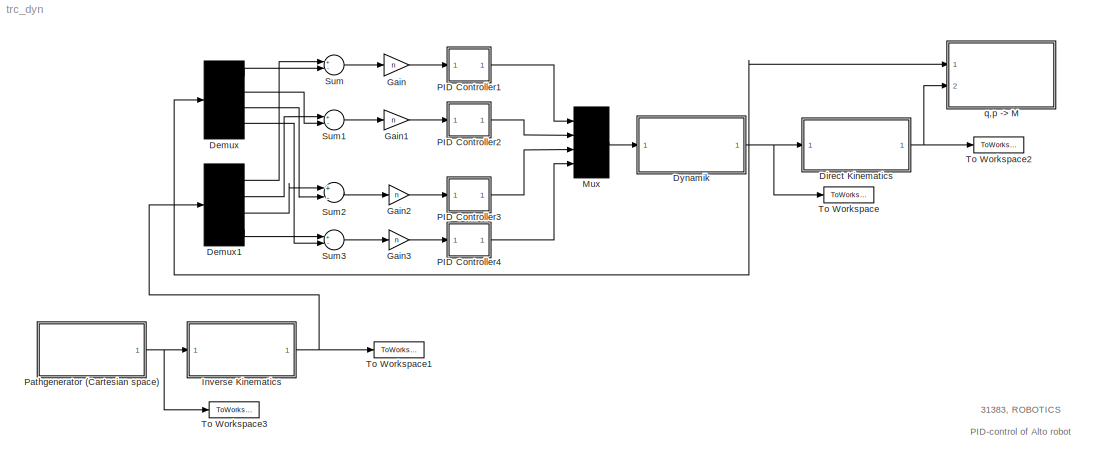
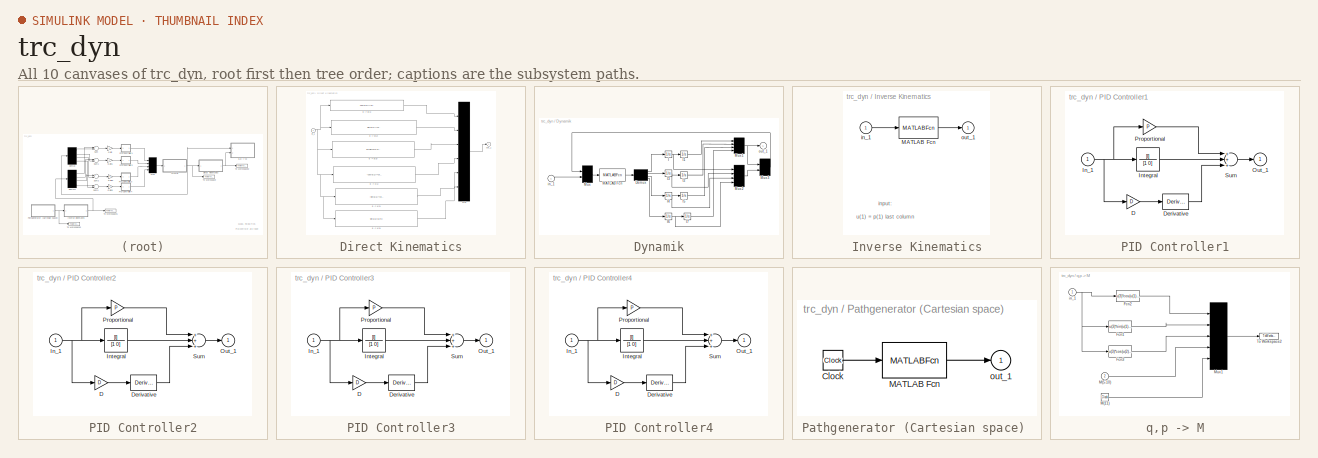
[diagram: thumbnail index - all 10 canvases of the model, root first then tree order]
MODEL trc_dyn
KIND model
BLOCK [Demux] Demux
  Ports = [1, 4]
  SID = 1
BLOCK [Demux] Demux1
  Ports = [1, 4]
  SID = 2
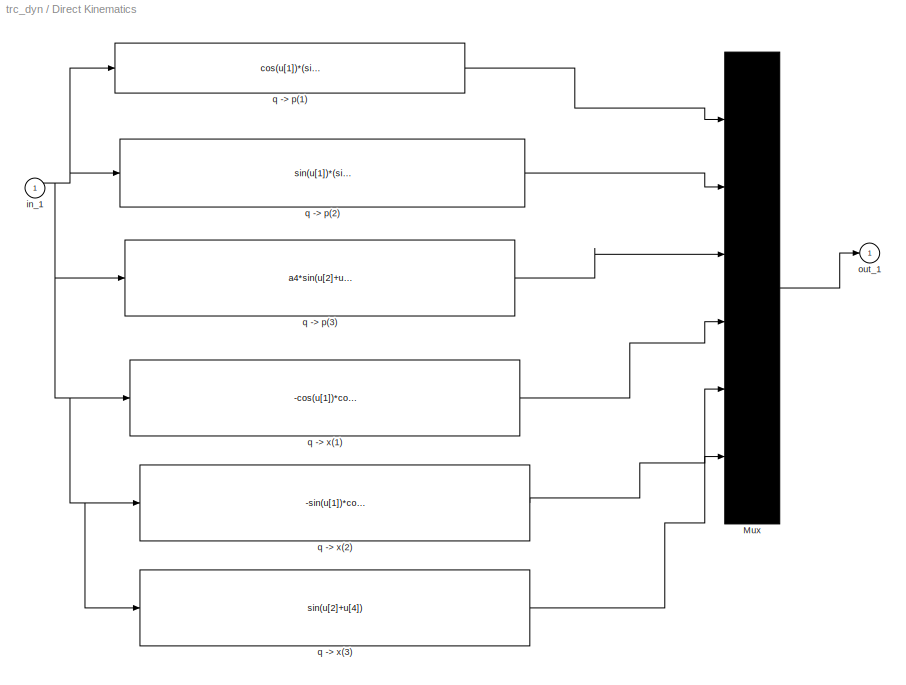
BLOCK [SubSystem] Direct Kinematics
  Ports = [1, 1]
  RequestExecContextInheritance = off
  SID = 116
  ShowPortLabels = none
  Variant = off
BLOCK [Mux] Direct Kinematics/Mux
  Inputs = 6
  Ports = [6, 1]
  SID = 118
BLOCK [Inport] Direct Kinematics/in_1
  IconDisplay = Port number
  SID = 117
BLOCK [Outport] Direct Kinematics/out_1
  IconDisplay = Port number
  InitialOutput = 0
  SID = 125
BLOCK [Fcn] Direct Kinematics/q -> p(1)
  Expr = cos(u[1])*(sin(u[2])*u[3]-a4*cos(u[2]+u[4]) )
  SID = 119
BLOCK [Fcn] Direct Kinematics/q -> p(2)
  Expr = sin(u[1])*(sin(u[2])*u[3]-a4*cos(u[2]+u[4]))
  SID = 120
BLOCK [Fcn] Direct Kinematics/q -> p(3)
  Expr = a4*sin(u[2]+u[4]) + cos(u[2])*u[3]+d1
  SID = 121
BLOCK [Fcn] Direct Kinematics/q -> x(1)
  Expr = -cos(u[1])*cos(u[2]+u[4])
  SID = 122
BLOCK [Fcn] Direct Kinematics/q -> x(2)
  Expr = -sin(u[1])*cos(u[2]+u[4])
  SID = 123
BLOCK [Fcn] Direct Kinematics/q -> x(3)
  Expr = sin(u[2]+u[4])
  SID = 124
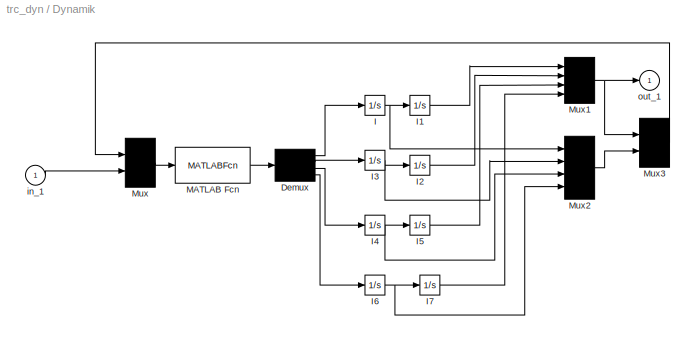
BLOCK [SubSystem] Dynamik
  Ports = [1, 1]
  RequestExecContextInheritance = off
  SID = 13
  ShowPortLabels = none
  Variant = off
BLOCK [Demux] Dynamik/Demux
  Ports = [1, 4]
  SID = 15
BLOCK [Integrator] Dynamik/I
  Ports = [1, 1]
  SID = 16
BLOCK [Integrator] Dynamik/I1
  Ports = [1, 1]
  SID = 17
BLOCK [Integrator] Dynamik/I2
  Ports = [1, 1]
  SID = 18
BLOCK [Integrator] Dynamik/I3
  Ports = [1, 1]
  SID = 19
BLOCK [Integrator] Dynamik/I4
  Ports = [1, 1]
  SID = 20
BLOCK [Integrator] Dynamik/I5
  Ports = [1, 1]
  SID = 21
BLOCK [Integrator] Dynamik/I6
  Ports = [1, 1]
  SID = 22
BLOCK [Integrator] Dynamik/I7
  Ports = [1, 1]
  SID = 23
BLOCK [MATLABFcn] Dynamik/MATLAB Fcn
  MATLABFcn = id4link
  OutputDimensions = 4
  Ports = [1, 1]
  SID = 24
BLOCK [Mux] Dynamik/Mux
  Inputs = [8 4]
  Ports = [2, 1]
  SID = 25
BLOCK [Mux] Dynamik/Mux1
  Ports = [4, 1]
  SID = 26
BLOCK [Mux] Dynamik/Mux2
  Ports = [4, 1]
  SID = 27
BLOCK [Mux] Dynamik/Mux3
  Inputs = [4 4]
  Ports = [2, 1]
  SID = 28
BLOCK [Inport] Dynamik/in_1
  IconDisplay = Port number
  SID = 14
BLOCK [Outport] Dynamik/out_1
  IconDisplay = Port number
  SID = 29
BLOCK [Gain] Gain
  Gain = n
  SID = 30
BLOCK [Gain] Gain1
  Gain = n
  SID = 31
BLOCK [Gain] Gain2
  Gain = n
  SID = 32
BLOCK [Gain] Gain3
  Gain = n
  SID = 33
BLOCK [SubSystem] Inverse Kinematics
  Ports = [1, 1]
  RequestExecContextInheritance = off
  SID = 101
  ShowPortLabels = none
  Variant = off
BLOCK [MATLABFcn] Inverse Kinematics/MATLAB Fcn
  MATLABFcn = inverse_kinematics
  OutputDimensions = 4
  Ports = [1, 1]
  SID = 103
BLOCK [Inport] Inverse Kinematics/in_1
  IconDisplay = Port number
  SID = 102
BLOCK [Outport] Inverse Kinematics/out_1
  IconDisplay = Port number
  SID = 104
BLOCK [Mux] Mux
  Ports = [4, 1]
  SID = 45
BLOCK [SubSystem] PID Controller1
  Ports = [1, 1]
  RequestExecContextInheritance = off
  SID = 46
  ShowPortLabels = none
  Variant = off
BLOCK [Gain] PID Controller1/D
  Gain = D
  SID = 48
BLOCK [Derivative] PID Controller1/Derivative
  SID = 49
BLOCK [Inport] PID Controller1/In_1
  IconDisplay = Port number
  SID = 47
BLOCK [TransferFcn] PID Controller1/Integral
  Denominator = [1 0]
  Numerator = [I]
  SID = 50
BLOCK [Outport] PID Controller1/Out_1
  IconDisplay = Port number
  InitialOutput = 0
  SID = 53
BLOCK [Gain] PID Controller1/Proportional
  Gain = P
  SID = 51
BLOCK [Sum] PID Controller1/Sum
  Inputs = +++
  Ports = [3, 1]
  SID = 52
BLOCK [SubSystem] PID Controller2
  Ports = [1, 1]
  RequestExecContextInheritance = off
  SID = 54
  ShowPortLabels = none
  Variant = off
BLOCK [Gain] PID Controller2/D
  Gain = D
  SID = 56
BLOCK [Derivative] PID Controller2/Derivative
  SID = 57
BLOCK [Inport] PID Controller2/In_1
  IconDisplay = Port number
  SID = 55
BLOCK [TransferFcn] PID Controller2/Integral
  Denominator = [1 0]
  Numerator = [I]
  SID = 58
BLOCK [Outport] PID Controller2/Out_1
  IconDisplay = Port number
  InitialOutput = 0
  SID = 61
BLOCK [Gain] PID Controller2/Proportional
  Gain = P
  SID = 59
BLOCK [Sum] PID Controller2/Sum
  Inputs = +++
  Ports = [3, 1]
  SID = 60
BLOCK [SubSystem] PID Controller3
  Ports = [1, 1]
  RequestExecContextInheritance = off
  SID = 62
  ShowPortLabels = none
  Variant = off
BLOCK [Gain] PID Controller3/D
  Gain = D
  SID = 64
BLOCK [Derivative] PID Controller3/Derivative
  SID = 65
BLOCK [Inport] PID Controller3/In_1
  IconDisplay = Port number
  SID = 63
BLOCK [TransferFcn] PID Controller3/Integral
  Denominator = [1 0]
  Numerator = [I]
  SID = 66
BLOCK [Outport] PID Controller3/Out_1
  IconDisplay = Port number
  InitialOutput = 0
  SID = 69
BLOCK [Gain] PID Controller3/Proportional
  Gain = P
  SID = 67
BLOCK [Sum] PID Controller3/Sum
  Inputs = +++
  Ports = [3, 1]
  SID = 68
BLOCK [SubSystem] PID Controller4
  Ports = [1, 1]
  RequestExecContextInheritance = off
  SID = 70
  ShowPortLabels = none
  Variant = off
BLOCK [Gain] PID Controller4/D
  Gain = D
  SID = 72
BLOCK [Derivative] PID Controller4/Derivative
  SID = 73
BLOCK [Inport] PID Controller4/In_1
  IconDisplay = Port number
  SID = 71
BLOCK [TransferFcn] PID Controller4/Integral
  Denominator = [1 0]
  Numerator = [I]
  SID = 74
BLOCK [Outport] PID Controller4/Out_1
  IconDisplay = Port number
  InitialOutput = 0
  SID = 77
BLOCK [Gain] PID Controller4/Proportional
  Gain = P
  SID = 75
BLOCK [Sum] PID Controller4/Sum
  Inputs = +++
  Ports = [3, 1]
  SID = 76
BLOCK [SubSystem] Pathgenerator (Cartesian space) 
  Ports = [0, 1]
  RequestExecContextInheritance = off
  SID = 78
  ShowPortLabels = none
  Variant = off
BLOCK [Clock] Pathgenerator (Cartesian space) /Clock
  SID = 79
BLOCK [MATLABFcn] Pathgenerator (Cartesian space) /MATLAB Fcn
  MATLABFcn = C_path
  OutputDimensions = 6
  Ports = [1, 1]
  SID = 80
BLOCK [Outport] Pathgenerator (Cartesian space) /out_1
  IconDisplay = Port number
  SID = 81
BLOCK [Sum] Sum
  Inputs = +-
  Ports = [2, 1]
  SID = 82
BLOCK [Sum] Sum1
  Inputs = +-
  Ports = [2, 1]
  SID = 83
BLOCK [Sum] Sum2
  Inputs = +-
  Ports = [2, 1]
  SID = 84
BLOCK [Sum] Sum3
  Inputs = +-
  Ports = [2, 1]
  SID = 85
BLOCK [ToWorkspace] To Workspace
  MaxDataPoints = 100000
  Ports = [1]
  SID = 86
  VariableName = q
BLOCK [ToWorkspace] To Workspace1
  MaxDataPoints = 10000
  Ports = [1]
  SID = 87
  VariableName = qr
BLOCK [ToWorkspace] To Workspace2
  MaxDataPoints = 100000
  Ports = [1]
  SID = 88
  VariableName = p
BLOCK [ToWorkspace] To Workspace3
  MaxDataPoints = 10000
  Ports = [1]
  SID = 89
  VariableName = pr
BLOCK [SubSystem] q,p -> M
  Ports = [2]
  RequestExecContextInheritance = off
  SID = 90
  ShowPortLabels = none
  Variant = off
BLOCK [Fcn] q,p -> M/Fcn1
  Expr = u(3)*sin(u(1))*sin(u(2))
  SID = 93
BLOCK [Fcn] q,p -> M/Fcn2
  Expr = u(3)*cos(u(1))*sin(u(2))
  SID = 94
BLOCK [Fcn] q,p -> M/Fcn3
  Expr = u(3)*cos(u(2)) +d1
  SID = 95
BLOCK [Clock] q,p -> M/M(11)
  SID = 96
BLOCK [Inport] q,p -> M/M(5-10)
  IconDisplay = Port number
  Port = 2
  SID = 92
BLOCK [Mux] q,p -> M/Mux1
  Inputs = [1 1 1 6 1]
  Ports = [5, 1]
  SID = 97
BLOCK [ToWorkspace] q,p -> M/To Workspace2
  MaxDataPoints = 100000
  Ports = [1]
  SID = 98
  VariableName = M
BLOCK [Inport] q,p -> M/in_1
  IconDisplay = Port number
  SID = 91
ANNOTATION (root): \n\n31383, ROBOTICS \n\nPID-control of Alto robot
ANNOTATION Inverse Kinematics: \n \n input: \n u(1) = p(1) last column \n u(2) = p(2) \n u(3) = p(3) \n u(4) = x(1) first column \n u(5) = x(2) \n u(6) = x(3)
LINE Demux1:1 -> Sum:1
LINE Demux1:2 -> Sum1:1
LINE Demux1:3 -> Sum2:1
LINE Demux1:4 -> Sum3:1
LINE Demux:1 -> Sum:2
LINE Demux:2 -> Sum1:2
LINE Demux:3 -> Sum2:2
LINE Demux:4 -> Sum3:2
LINE Direct Kinematics/Mux:1 -> Direct Kinematics/out_1:1
NET Direct Kinematics/in_1:1 -> Direct Kinematics/q -> p(1):1, Direct Kinematics/q -> p(2):1, Direct Kinematics/q -> p(3):1, Direct Kinematics/q -> x(1):1, Direct Kinematics/q -> x(2):1, Direct Kinematics/q -> x(3):1
LINE Direct Kinematics/q -> p(1):1 -> Direct Kinematics/Mux:1
LINE Direct Kinematics/q -> p(2):1 -> Direct Kinematics/Mux:2
LINE Direct Kinematics/q -> p(3):1 -> Direct Kinematics/Mux:3
LINE Direct Kinematics/q -> x(1):1 -> Direct Kinematics/Mux:4
LINE Direct Kinematics/q -> x(2):1 -> Direct Kinematics/Mux:5
LINE Direct Kinematics/q -> x(3):1 -> Direct Kinematics/Mux:6
NET Direct Kinematics:1 -> To Workspace2:1, q,p -> M:2
LINE Dynamik/Demux:1 -> Dynamik/I:1
LINE Dynamik/Demux:2 -> Dynamik/I3:1
LINE Dynamik/Demux:3 -> Dynamik/I4:1
LINE Dynamik/Demux:4 -> Dynamik/I6:1
LINE Dynamik/I1:1 -> Dynamik/Mux1:1
LINE Dynamik/I2:1 -> Dynamik/Mux1:2
NET Dynamik/I3:1 -> Dynamik/I2:1, Dynamik/Mux2:2
NET Dynamik/I4:1 -> Dynamik/I5:1, Dynamik/Mux2:3
LINE Dynamik/I5:1 -> Dynamik/Mux1:3
NET Dynamik/I6:1 -> Dynamik/I7:1, Dynamik/Mux2:4
LINE Dynamik/I7:1 -> Dynamik/Mux1:4
NET Dynamik/I:1 -> Dynamik/I1:1, Dynamik/Mux2:1
LINE Dynamik/MATLAB Fcn:1 -> Dynamik/Demux:1
NET Dynamik/Mux1:1 -> Dynamik/Mux3:1, Dynamik/out_1:1
LINE Dynamik/Mux2:1 -> Dynamik/Mux3:2
LINE Dynamik/Mux3:1 -> Dynamik/Mux:1
LINE Dynamik/Mux:1 -> Dynamik/MATLAB Fcn:1
LINE Dynamik/in_1:1 -> Dynamik/Mux:2
NET Dynamik:1 -> Demux:1, Direct Kinematics:1, To Workspace:1, q,p -> M:1
LINE Gain1:1 -> PID Controller2:1
LINE Gain2:1 -> PID Controller3:1
LINE Gain3:1 -> PID Controller4:1
LINE Gain:1 -> PID Controller1:1
LINE Inverse Kinematics/MATLAB Fcn:1 -> Inverse Kinematics/out_1:1
LINE Inverse Kinematics/in_1:1 -> Inverse Kinematics/MATLAB Fcn:1
NET Inverse Kinematics:1 -> Demux1:1, To Workspace1:1
LINE Mux:1 -> Dynamik:1
LINE PID Controller1/D:1 -> PID Controller1/Derivative:1
LINE PID Controller1/Derivative:1 -> PID Controller1/Sum:3
NET PID Controller1/In_1:1 -> PID Controller1/D:1, PID Controller1/Integral:1, PID Controller1/Proportional:1
LINE PID Controller1/Integral:1 -> PID Controller1/Sum:2
LINE PID Controller1/Proportional:1 -> PID Controller1/Sum:1
LINE PID Controller1/Sum:1 -> PID Controller1/Out_1:1
LINE PID Controller1:1 -> Mux:1
LINE PID Controller2/D:1 -> PID Controller2/Derivative:1
LINE PID Controller2/Derivative:1 -> PID Controller2/Sum:3
NET PID Controller2/In_1:1 -> PID Controller2/D:1, PID Controller2/Integral:1, PID Controller2/Proportional:1
LINE PID Controller2/Integral:1 -> PID Controller2/Sum:2
LINE PID Controller2/Proportional:1 -> PID Controller2/Sum:1
LINE PID Controller2/Sum:1 -> PID Controller2/Out_1:1
LINE PID Controller2:1 -> Mux:2
LINE PID Controller3/D:1 -> PID Controller3/Derivative:1
LINE PID Controller3/Derivative:1 -> PID Controller3/Sum:3
NET PID Controller3/In_1:1 -> PID Controller3/D:1, PID Controller3/Integral:1, PID Controller3/Proportional:1
LINE PID Controller3/Integral:1 -> PID Controller3/Sum:2
LINE PID Controller3/Proportional:1 -> PID Controller3/Sum:1
LINE PID Controller3/Sum:1 -> PID Controller3/Out_1:1
LINE PID Controller3:1 -> Mux:3
LINE PID Controller4/D:1 -> PID Controller4/Derivative:1
LINE PID Controller4/Derivative:1 -> PID Controller4/Sum:3
NET PID Controller4/In_1:1 -> PID Controller4/D:1, PID Controller4/Integral:1, PID Controller4/Proportional:1
LINE PID Controller4/Integral:1 -> PID Controller4/Sum:2
LINE PID Controller4/Proportional:1 -> PID Controller4/Sum:1
LINE PID Controller4/Sum:1 -> PID Controller4/Out_1:1
LINE PID Controller4:1 -> Mux:4
LINE Pathgenerator (Cartesian space) /Clock:1 -> Pathgenerator (Cartesian space) /MATLAB Fcn:1
LINE Pathgenerator (Cartesian space) /MATLAB Fcn:1 -> Pathgenerator (Cartesian space) /out_1:1
NET Pathgenerator (Cartesian space) :1 -> Inverse Kinematics:1, To Workspace3:1
LINE Sum1:1 -> Gain1:1
LINE Sum2:1 -> Gain2:1
LINE Sum3:1 -> Gain3:1
LINE Sum:1 -> Gain:1
LINE q,p -> M/Fcn1:1 -> q,p -> M/Mux1:2
LINE q,p -> M/Fcn2:1 -> q,p -> M/Mux1:1
LINE q,p -> M/Fcn3:1 -> q,p -> M/Mux1:3
LINE q,p -> M/M(11):1 -> q,p -> M/Mux1:5
LINE q,p -> M/M(5-10):1 -> q,p -> M/Mux1:4
LINE q,p -> M/Mux1:1 -> q,p -> M/To Workspace2:1
NET q,p -> M/in_1:1 -> q,p -> M/Fcn1:1, q,p -> M/Fcn2:1, q,p -> M/Fcn3:1
note: NET lines group one-source signal fan-out (src -> all destinations, sorted); 1:1 wires keep LINE
